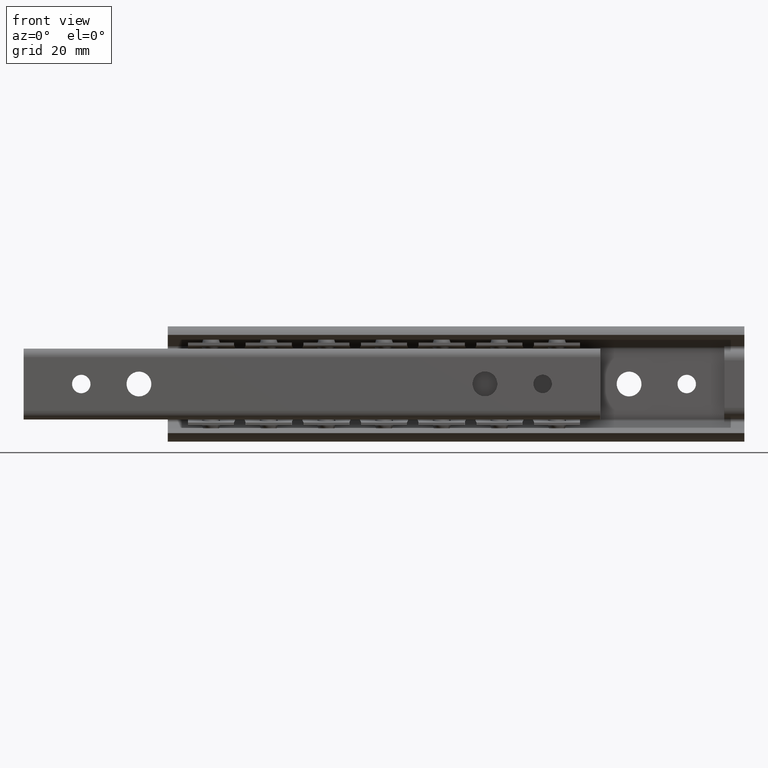
[diagram: clean part render]
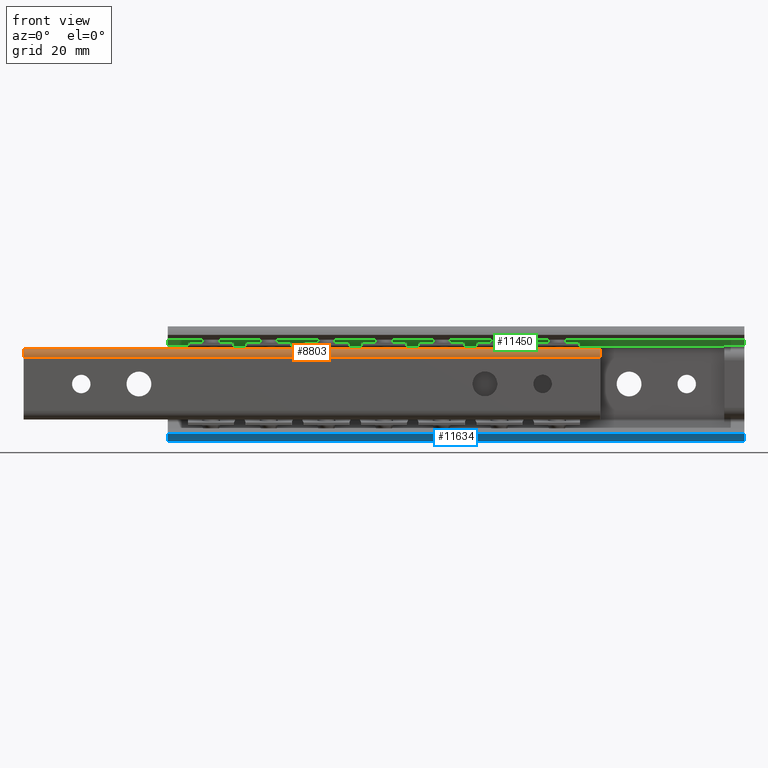
[diagram: same view with three faces highlighted in distinct colors, each labeled with its STEP entity id]
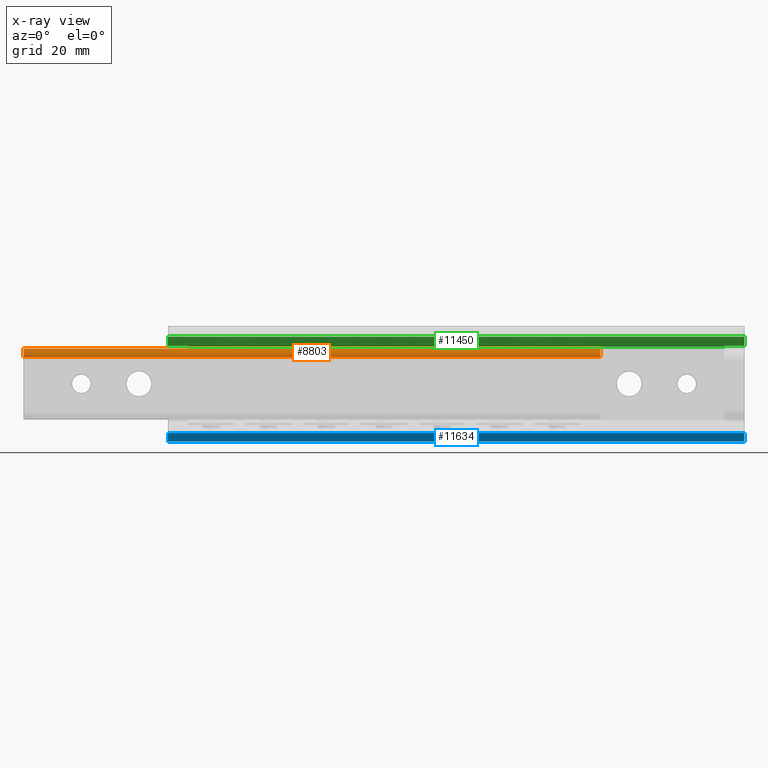
[diagram: x-ray of the same camera — body ghosted, the three highlighted faces saturated]
A machine part, front view with three faces highlighted in distinct colors.
The next image is the same camera in x-ray (body ghosted, the three faces saturated) — at least one of them is partly hidden behind the body in this view.
Their STEP definitions:

[orange] entity #8803 — the highlighted face is a freeform B-spline surface patch.
#8223=CARTESIAN_POINT('',(-25.0,-5.520770559995830,5.796694574426810));
#8224=VERTEX_POINT('',#8223);
#8357=CARTESIAN_POINT('',(-25.0,-8.000000000000091,4.641039999999900));
#8358=VERTEX_POINT('',#8357);
#8364=CARTESIAN_POINT('',(-25.0,-5.520770559995825,5.796694574426815));
#8365=CARTESIAN_POINT('',(-25.0,-6.257119220895800,6.414921351414743));
#8366=CARTESIAN_POINT('',(-25.0,-7.128559610447943,6.008712851194377));
#8367=CARTESIAN_POINT('',(-25.0,-8.000000000000080,5.602504350974015));
#8368=CARTESIAN_POINT('',(-25.0,-8.000000000000080,4.641039999999910));
#8376=(BOUNDED_CURVE()B_SPLINE_CURVE(2,(#8364,#8365,#8366,#8367,#8368),.UNSPECIFIED.,.F.,.U.)B_SPLINE_CURVE_WITH_KNOTS((3,2,3),(0.0,0.500000000000000,1.0),.UNSPECIFIED.)CURVE()GEOMETRIC_REPRESENTATION_ITEM()RATIONAL_B_SPLINE_CURVE((1.0,0.843353248524731,1.0,0.843353248524731,1.0))REPRESENTATION_ITEM(''));
#8377=EDGE_CURVE('',#8224,#8358,#8376,.T.);
#8411=CARTESIAN_POINT('',(75.0,-5.520770942139200,5.796694532959880));
#8412=VERTEX_POINT('',#8411);
#8426=CARTESIAN_POINT('',(75.0,-8.0,4.641039999999910));
#8427=VERTEX_POINT('',#8426);
#8428=CARTESIAN_POINT('',(75.0,-5.520770942139200,5.796694532959880));
#8429=CARTESIAN_POINT('',(75.000000000000014,-6.257119461994663,6.414921332530214));
#8430=CARTESIAN_POINT('',(75.0,-7.128559730997371,6.008712795002114));
#8431=CARTESIAN_POINT('',(75.000000000000014,-8.000000000000080,5.602504257474014));
#8432=CARTESIAN_POINT('',(75.0,-8.000000000000080,4.641039999999910));
#8440=(BOUNDED_CURVE()B_SPLINE_CURVE(2,(#8428,#8429,#8430,#8431,#8432),.UNSPECIFIED.,.F.,.U.)B_SPLINE_CURVE_WITH_KNOTS((3,2,3),(0.0,0.500000000000000,1.0),.UNSPECIFIED.)CURVE()GEOMETRIC_REPRESENTATION_ITEM()RATIONAL_B_SPLINE_CURVE((1.0,0.843353272206707,1.0,0.843353272206707,1.0))REPRESENTATION_ITEM(''));
#8441=EDGE_CURVE('',#8412,#8427,#8440,.T.);
#8740=CARTESIAN_POINT('',(75.0,-8.0,4.641039999999910));
#8741=CARTESIAN_POINT('',(-25.0,-8.000000000000091,4.641039999999900));
#8742=QUASI_UNIFORM_CURVE('',1,(#8740,#8741),.UNSPECIFIED.,.F.,.U.);
#8743=EDGE_CURVE('',#8427,#8358,#8742,.T.);
#8775=CARTESIAN_POINT('',(77.500000000000014,-5.471285293034917,5.753272268558233));
#8776=CARTESIAN_POINT('',(-27.562500000000000,-5.471285293034917,5.753272268558233));
#8777=CARTESIAN_POINT('',(77.500000000000014,-6.221495430884480,6.441105503496388));
#8778=CARTESIAN_POINT('',(-27.562500000000000,-6.221495430884480,6.441105503496388));
#8779=CARTESIAN_POINT('',(77.500000000000014,-7.140276965039488,6.003189641128381));
#8780=CARTESIAN_POINT('',(-27.562500000000000,-7.140276965039488,6.003189641128381));
#8781=CARTESIAN_POINT('',(77.500000000000014,-8.059058499194496,5.565273778760371));
#8782=CARTESIAN_POINT('',(-27.562500000000000,-8.059058499194496,5.565273778760371));
#8783=CARTESIAN_POINT('',(77.500000000000014,-7.997211602551442,4.549348205013273));
#8784=CARTESIAN_POINT('',(-27.562500000000000,-7.997211602551442,4.549348205013273));
#8792=(BOUNDED_SURFACE()B_SPLINE_SURFACE(1,2,((#8775,#8777,#8779,#8781,#8783),(#8776,#8778,#8780,#8782,#8784)),.UNSPECIFIED.,.F.,.F.,.U.)B_SPLINE_SURFACE_WITH_KNOTS((2,2),(3,2,3),(0.0,105.062500000000000),(0.0,1.0,2.0),.UNSPECIFIED.)GEOMETRIC_REPRESENTATION_ITEM()RATIONAL_B_SPLINE_SURFACE(((1.0,0.829037572555042,1.0,0.829037572555042,1.0),(1.0,0.829037572555042,1.0,0.829037572555042,1.0)))REPRESENTATION_ITEM('')SURFACE());
#8793=CARTESIAN_POINT('',(75.0,-5.520770942139200,5.796694532959880));
#8794=CARTESIAN_POINT('',(-25.0,-5.520770559995830,5.796694574426810));
#8795=QUASI_UNIFORM_CURVE('',1,(#8793,#8794),.UNSPECIFIED.,.F.,.U.);
#8796=EDGE_CURVE('',#8412,#8224,#8795,.T.);
#8797=ORIENTED_EDGE('',*,*,#8796,.T.);
#8798=ORIENTED_EDGE('',*,*,#8377,.T.);
#8799=ORIENTED_EDGE('',*,*,#8743,.F.);
#8800=ORIENTED_EDGE('',*,*,#8441,.F.);
#8801=EDGE_LOOP('',(#8797,#8798,#8799,#8800));
#8802=FACE_OUTER_BOUND('',#8801,.T.);
#8803=ADVANCED_FACE('',(#8802),#8792,.T.);

[blue] entity #11634 — the highlighted face is a freeform B-spline surface patch.
#9798=CARTESIAN_POINT('',(100.0,-7.078071239486619,-8.522037986978919));
#9799=VERTEX_POINT('',#9798);
#9805=CARTESIAN_POINT('',(100.0,-2.466980000000175,-9.201561000000000));
#9806=VERTEX_POINT('',#9805);
#9807=CARTESIAN_POINT('',(100.0,-7.078071239486623,-8.522037986978919));
#9808=CARTESIAN_POINT('',(100.0,-6.353743143967781,-9.759084982229698));
#9809=CARTESIAN_POINT('',(100.0,-4.935554901319296,-9.968079161169062));
#9810=CARTESIAN_POINT('',(100.0,-3.517366658670809,-10.177073340108425));
#9811=CARTESIAN_POINT('',(100.0,-2.466980000000175,-9.201561000000000));
#9819=(BOUNDED_CURVE()B_SPLINE_CURVE(2,(#9807,#9808,#9809,#9810,#9811),.UNSPECIFIED.,.F.,.U.)B_SPLINE_CURVE_WITH_KNOTS((3,2,3),(0.0,0.500000000000000,1.0),.UNSPECIFIED.)CURVE()GEOMETRIC_REPRESENTATION_ITEM()RATIONAL_B_SPLINE_CURVE((1.0,0.901581331480265,1.0,0.901581331480265,1.0))REPRESENTATION_ITEM(''));
#9820=EDGE_CURVE('',#9799,#9806,#9819,.T.);
#10662=CARTESIAN_POINT('',(0.0,-2.466980000000175,-9.201561000000000));
#10663=VERTEX_POINT('',#10662);
#10669=CARTESIAN_POINT('',(0.0,-7.078071239486619,-8.522037986978919));
#10670=VERTEX_POINT('',#10669);
#10671=CARTESIAN_POINT('',(0.0,-7.078071239486623,-8.522037986978919));
#10672=CARTESIAN_POINT('',(0.0,-6.353743143967781,-9.759084982229698));
#10673=CARTESIAN_POINT('',(0.0,-4.935554901319296,-9.968079161169062));
#10674=CARTESIAN_POINT('',(0.0,-3.517366658670809,-10.177073340108425));
#10675=CARTESIAN_POINT('',(0.0,-2.466980000000175,-9.201561000000000));
#10683=(BOUNDED_CURVE()B_SPLINE_CURVE(2,(#10671,#10672,#10673,#10674,#10675),.UNSPECIFIED.,.F.,.U.)B_SPLINE_CURVE_WITH_KNOTS((3,2,3),(0.0,0.500000000000000,1.0),.UNSPECIFIED.)CURVE()GEOMETRIC_REPRESENTATION_ITEM()RATIONAL_B_SPLINE_CURVE((1.0,0.901581331480265,1.0,0.901581331480265,1.0))REPRESENTATION_ITEM(''));
#10684=EDGE_CURVE('',#10670,#10663,#10683,.T.);
#11599=CARTESIAN_POINT('',(100.0,-7.078071239486619,-8.522037986978919));
#11600=CARTESIAN_POINT('',(0.0,-7.078071239486619,-8.522037986978919));
#11601=QUASI_UNIFORM_CURVE('',1,(#11599,#11600),.UNSPECIFIED.,.F.,.U.);
#11602=EDGE_CURVE('',#9799,#10670,#11601,.T.);
#11610=CARTESIAN_POINT('',(102.500000000000000,-7.128361483693322,-8.432666244155140));
#11611=CARTESIAN_POINT('',(-2.562500000000000,-7.128361483693322,-8.432666244155140));
#11612=CARTESIAN_POINT('',(102.500000000000000,-5.139968390697791,-12.112669090005582));
#11613=CARTESIAN_POINT('',(-2.562500000000000,-5.139968390697791,-12.112669090005582));
#11614=CARTESIAN_POINT('',(102.499999999999990,-2.304003409688435,-9.038025913272987));
#11615=CARTESIAN_POINT('',(-2.562500000000000,-2.304003409688435,-9.038025913272987));
#11623=(BOUNDED_SURFACE()B_SPLINE_SURFACE(1,2,((#11610,#11612,#11614),(#11611,#11613,#11615)),.UNSPECIFIED.,.F.,.F.,.U.)B_SPLINE_SURFACE_WITH_KNOTS((2,2),(3,3),(0.0,105.062500000000000),(0.0,6.149971916769982),.UNSPECIFIED.)GEOMETRIC_REPRESENTATION_ITEM()RATIONAL_B_SPLINE_SURFACE(((1.0,0.581021895955603,0.999362604717430),(1.0,0.581021895955603,0.999362604717430)))REPRESENTATION_ITEM('')SURFACE());
#11624=CARTESIAN_POINT('',(100.0,-2.466980000000175,-9.201561000000000));
#11625=CARTESIAN_POINT('',(0.0,-2.466980000000175,-9.201561000000000));
#11626=QUASI_UNIFORM_CURVE('',1,(#11624,#11625),.UNSPECIFIED.,.F.,.U.);
#11627=EDGE_CURVE('',#9806,#10663,#11626,.T.);
#11628=ORIENTED_EDGE('',*,*,#11627,.F.);
#11629=ORIENTED_EDGE('',*,*,#9820,.F.);
#11630=ORIENTED_EDGE('',*,*,#11602,.T.);
#11631=ORIENTED_EDGE('',*,*,#10684,.T.);
#11632=EDGE_LOOP('',(#11628,#11629,#11630,#11631));
#11633=FACE_OUTER_BOUND('',#11632,.T.);
#11634=ADVANCED_FACE('',(#11633),#11623,.T.);

[green] entity #11450 — the highlighted face is a freeform B-spline surface patch.
#9665=CARTESIAN_POINT('',(100.0,-3.419692000000280,8.175724999999899));
#9666=VERTEX_POINT('',#9665);
#9682=CARTESIAN_POINT('',(100.0,-1.807985614547020,6.678903967628311));
#9683=VERTEX_POINT('',#9682);
#9684=CARTESIAN_POINT('',(100.0,-1.807985614547020,6.678903967628311));
#9685=CARTESIAN_POINT('',(100.0,-3.419692000000280,8.175724999999899));
#9686=QUASI_UNIFORM_CURVE('',1,(#9684,#9685),.UNSPECIFIED.,.F.,.U.);
#9687=EDGE_CURVE('',#9683,#9666,#9686,.T.);
#9980=CARTESIAN_POINT('',(96.500000000000000,-1.807985614547020,6.678903967628311));
#9981=VERTEX_POINT('',#9980);
#9982=CARTESIAN_POINT('',(96.500000000000000,-1.807985614547020,6.678903967628311));
#9983=CARTESIAN_POINT('',(100.0,-1.807985614547020,6.678903967628311));
#9984=QUASI_UNIFORM_CURVE('',1,(#9982,#9983),.UNSPECIFIED.,.F.,.U.);
#9985=EDGE_CURVE('',#9981,#9683,#9984,.T.);
#10444=CARTESIAN_POINT('',(96.500000000000000,-1.559745313813325,6.448359291444120));
#10445=VERTEX_POINT('',#10444);
#10446=CARTESIAN_POINT('',(96.500000000000000,-1.559745313813325,6.448359291444120));
#10447=CARTESIAN_POINT('',(96.500000000000000,-1.807985614547020,6.678903967628311));
#10448=QUASI_UNIFORM_CURVE('',1,(#10446,#10447),.UNSPECIFIED.,.F.,.U.);
#10449=EDGE_CURVE('',#10445,#9981,#10448,.T.);
#10785=CARTESIAN_POINT('',(0.0,-1.807985614547020,6.678903967628311));
#10786=VERTEX_POINT('',#10785);
#10802=CARTESIAN_POINT('',(0.0,-3.419692000000280,8.175724999999899));
#10803=VERTEX_POINT('',#10802);
#10804=CARTESIAN_POINT('',(0.0,-1.807985614547020,6.678903967628311));
#10805=CARTESIAN_POINT('',(0.0,-3.419692000000280,8.175724999999899));
#10806=QUASI_UNIFORM_CURVE('',1,(#10804,#10805),.UNSPECIFIED.,.F.,.U.);
#10807=EDGE_CURVE('',#10786,#10803,#10806,.T.);
#10849=CARTESIAN_POINT('',(3.499999999999950,-1.807985381037790,6.678904275769610));
#10850=VERTEX_POINT('',#10849);
#10866=CARTESIAN_POINT('',(3.499999999999950,-1.807985381037790,6.678904275769610));
#10867=CARTESIAN_POINT('',(0.0,-1.807985614547020,6.678903967628311));
#10868=QUASI_UNIFORM_CURVE('',1,(#10866,#10867),.UNSPECIFIED.,.F.,.U.);
#10869=EDGE_CURVE('',#10850,#10786,#10868,.T.);
#11345=CARTESIAN_POINT('',(3.499999999999950,-1.559745614546865,6.448358967628300));
#11346=VERTEX_POINT('',#11345);
#11360=CARTESIAN_POINT('',(3.499999999999950,-1.807985381037790,6.678904275769610));
#11361=CARTESIAN_POINT('',(3.499999999999950,-1.559745614546865,6.448358967628300));
#11362=QUASI_UNIFORM_CURVE('',1,(#11360,#11361),.UNSPECIFIED.,.F.,.U.);
#11363=EDGE_CURVE('',#10850,#11346,#11362,.T.);
#11427=CARTESIAN_POINT('',(-4.994999806180592,-3.512596344184973,8.262006923838438));
#11428=CARTESIAN_POINT('',(-4.994999806180592,-1.466841069403733,6.362077460268928));
#11429=CARTESIAN_POINT('',(104.995002488389600,-3.512596344184973,8.262006923838438));
#11430=CARTESIAN_POINT('',(104.995002488389600,-1.466841069403733,6.362077460268928));
#11431=B_SPLINE_SURFACE_WITH_KNOTS('',1,1,((#11427,#11429),(#11428,#11430)),.UNSPECIFIED.,.F.,.F.,.U.,(2,2),(2,2),(0.0,2.791925251656067),(0.0,109.990002294570200),.UNSPECIFIED.);
#11432=CARTESIAN_POINT('',(96.500000000000000,-1.559745313813325,6.448359291444120));
#11433=CARTESIAN_POINT('',(3.499999999999950,-1.559745614546865,6.448358967628300));
#11434=QUASI_UNIFORM_CURVE('',1,(#11432,#11433),.UNSPECIFIED.,.F.,.U.);
#11435=EDGE_CURVE('',#10445,#11346,#11434,.T.);
#11436=ORIENTED_EDGE('',*,*,#11435,.F.);
#11437=ORIENTED_EDGE('',*,*,#10449,.T.);
#11438=ORIENTED_EDGE('',*,*,#9985,.T.);
#11439=ORIENTED_EDGE('',*,*,#9687,.T.);
#11440=CARTESIAN_POINT('',(100.0,-3.419692000000280,8.175724999999899));
#11441=CARTESIAN_POINT('',(0.0,-3.419692000000280,8.175724999999899));
#11442=QUASI_UNIFORM_CURVE('',1,(#11440,#11441),.UNSPECIFIED.,.F.,.U.);
#11443=EDGE_CURVE('',#9666,#10803,#11442,.T.);
#11444=ORIENTED_EDGE('',*,*,#11443,.T.);
#11445=ORIENTED_EDGE('',*,*,#10807,.F.);
#11446=ORIENTED_EDGE('',*,*,#10869,.F.);
#11447=ORIENTED_EDGE('',*,*,#11363,.T.);
#11448=EDGE_LOOP('',(#11436,#11437,#11438,#11439,#11444,#11445,#11446,#11447));
#11449=FACE_OUTER_BOUND('',#11448,.T.);
#11450=ADVANCED_FACE('',(#11449),#11431,.T.);